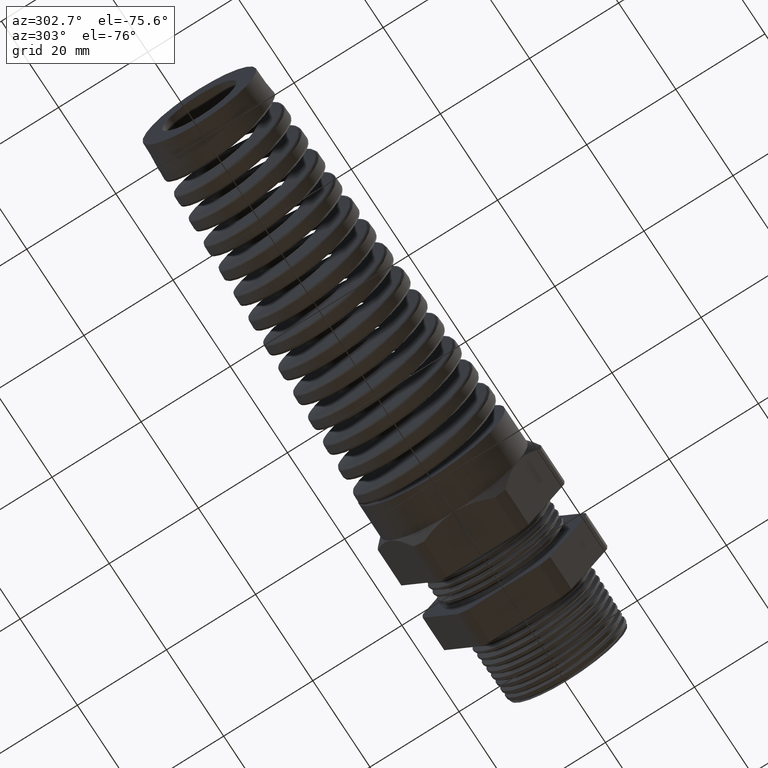
[diagram: clean part render]
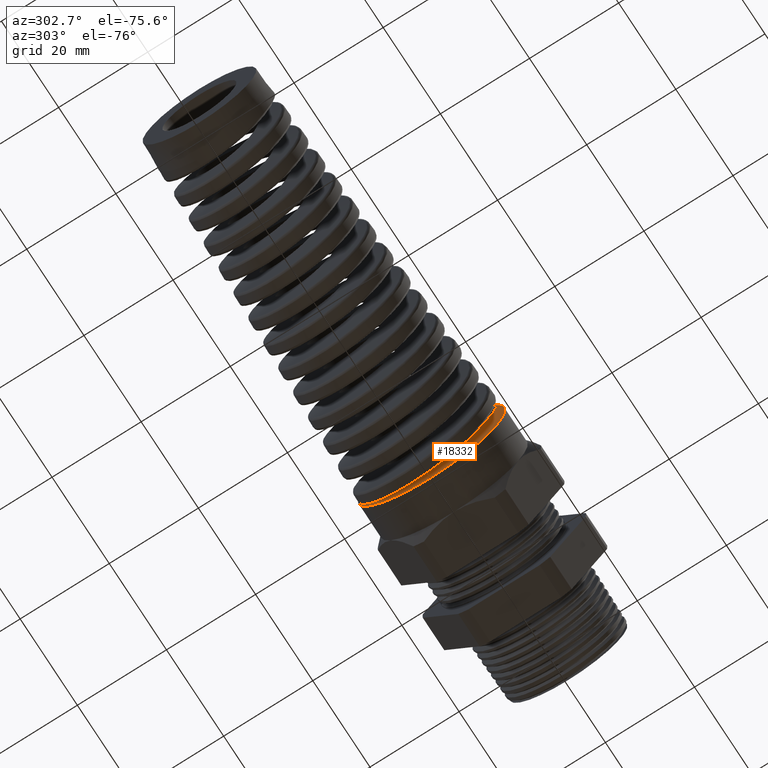
[diagram: same view with one face highlighted and labeled with its STEP entity id]
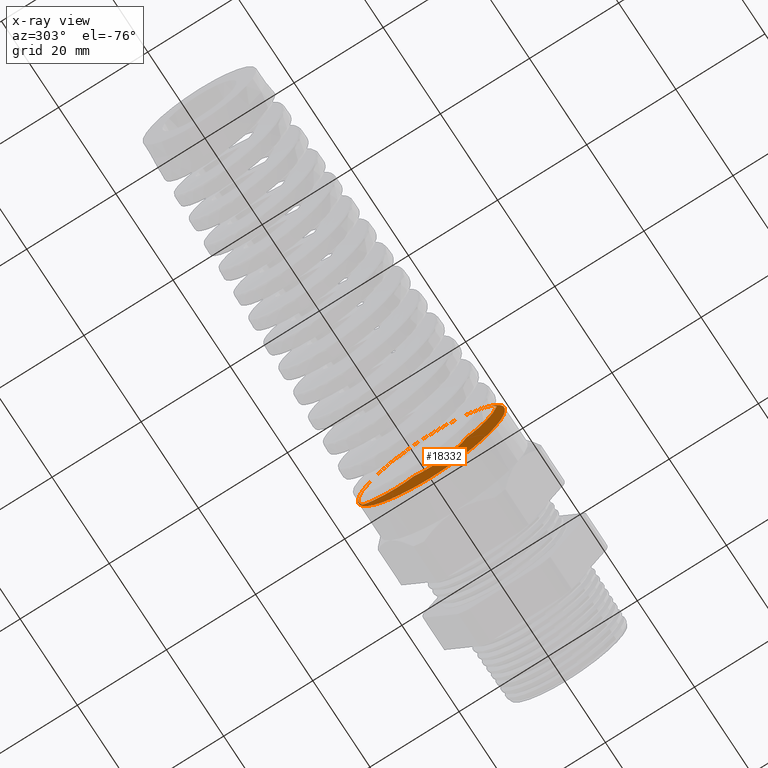
[diagram: x-ray of the same camera — body ghosted, the highlighted face saturated]
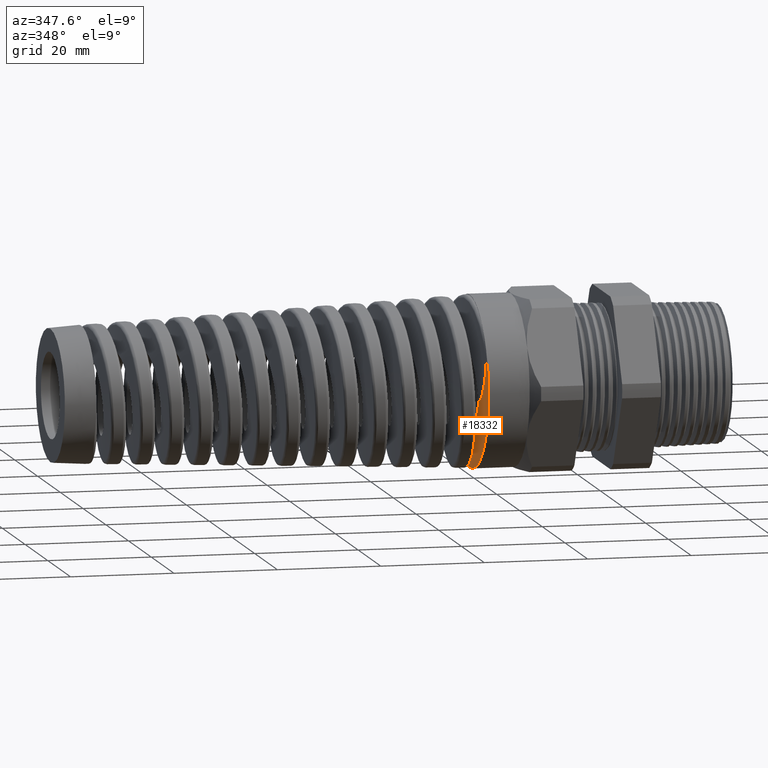
[diagram: same view with one face highlighted and labeled with its STEP entity id]
A machine part, auxiliary view. The second image highlights one B-rep face of the part: STEP entity #18332.
The next image is the same camera in x-ray: the body ghosted, the highlighted face saturated — about 1% of this face is hidden behind the body in this view.
A second angle (auxiliary view) of the same face is appended — the face is thin or edge-on in the first view.
In plain terms, the highlighted planar face has unit normal (-1, 0, 0).
Its self-contained STEP definition (entity closure, byte-faithful):
#4864 = VERTEX_POINT ( 'NONE', #11068 ) ;
#4868 = VERTEX_POINT ( 'NONE', #11067 ) ;
#5137 = EDGE_CURVE ( 'NONE', #5138, #5139, #11627, .T. ) ;
#5138 = VERTEX_POINT ( 'NONE', #11623 ) ;
#5139 = VERTEX_POINT ( 'NONE', #11622 ) ;
#5223 = CARTESIAN_POINT ( 'NONE',  ( -1.606986927084339500, 0.0000000000000000000, -0.3275967892592687200 ) ) ;
#5263 = DIRECTION ( 'NONE',  ( 0.0000000000000000000, 0.0000000000000000000, 1.000000000000000000 ) ) ;
#5264 = DIRECTION ( 'NONE',  ( -1.000000000000000000, 0.0000000000000000000, 0.0000000000000000000 ) ) ;
#5279 = AXIS2_PLACEMENT_3D ( 'NONE', #5282, #5264, #5263 ) ;
#5280 = CIRCLE ( 'NONE', #5279, 0.3275967892592687200 ) ;
#5282 = CARTESIAN_POINT ( 'NONE',  ( -1.606986927084339500, 0.0000000000000000000, 0.0000000000000000000 ) ) ;
#5283 = CARTESIAN_POINT ( 'NONE',  ( -1.606986927084339500, 0.1525758692573220800, -0.2898969824840443300 ) ) ;
#8694 = EDGE_CURVE ( 'NONE', #4864, #4868, #12082, .T. ) ;
#11067 = CARTESIAN_POINT ( 'NONE',  ( -1.606986927084339500, 7.919039874280547800E-017, 0.6466386781718688200 ) ) ;
#11068 = CARTESIAN_POINT ( 'NONE',  ( -1.606986927084339500, 0.6253945637225231100, 0.1643874075900485000 ) ) ;
#11622 = CARTESIAN_POINT ( 'NONE',  ( -1.606986927084339500, 0.0000000000000000000, -0.6500000000000000200 ) ) ;
#11623 = CARTESIAN_POINT ( 'NONE',  ( -1.606986927084339500, 7.960204194457796700E-017, 0.6500000000000000200 ) ) ;
#11624 = DIRECTION ( 'NONE',  ( 0.0000000000000000000, 0.0000000000000000000, 1.000000000000000000 ) ) ;
#11625 = DIRECTION ( 'NONE',  ( -1.000000000000000000, 0.0000000000000000000, 0.0000000000000000000 ) ) ;
#11626 = AXIS2_PLACEMENT_3D ( 'NONE', #11632, #11625, #11624 ) ;
#11627 = CIRCLE ( 'NONE', #11626, 0.6500000000000000200 ) ;
#11632 = CARTESIAN_POINT ( 'NONE',  ( -1.606986927084339500, 0.0000000000000000000, 0.0000000000000000000 ) ) ;
#12082 = CIRCLE ( 'NONE', #12109, 0.6466386781718688200 ) ;
#12106 = DIRECTION ( 'NONE',  ( 0.0000000000000000000, -1.776356839400250500E-015, 1.000000000000000000 ) ) ;
#12107 = DIRECTION ( 'NONE',  ( 1.000000000000000000, 0.0000000000000000000, 0.0000000000000000000 ) ) ;
#12108 = CARTESIAN_POINT ( 'NONE',  ( -1.606986927084339500, 0.0000000000000000000, 0.0000000000000000000 ) ) ;
#12109 = AXIS2_PLACEMENT_3D ( 'NONE', #12108, #12107, #12106 ) ;
#14622 = DIRECTION ( 'NONE',  ( 0.0000000000000000000, 0.0000000000000000000, 1.000000000000000000 ) ) ;
#14623 = DIRECTION ( 'NONE',  ( -1.000000000000000000, 0.0000000000000000000, 0.0000000000000000000 ) ) ;
#14923 = AXIS2_PLACEMENT_3D ( 'NONE', #14931, #14623, #14622 ) ;
#14924 = CIRCLE ( 'NONE', #14923, 0.6500000000000000200 ) ;
#14931 = CARTESIAN_POINT ( 'NONE',  ( -1.606986927084339500, 0.0000000000000000000, 0.0000000000000000000 ) ) ;
#15216 = CARTESIAN_POINT ( 'NONE',  ( -1.606986927084338700, 0.2466628839916254800, -0.3152417276093634200 ) ) ;
#15218 = CARTESIAN_POINT ( 'NONE',  ( -1.606986927084338400, 0.2271089660233394900, -0.3123547832230331200 ) ) ;
#15219 = CARTESIAN_POINT ( 'NONE',  ( -1.606986927084338700, 0.1890714355506049300, -0.3034836527518902600 ) ) ;
#15303 = EDGE_CURVE ( 'NONE', #5139, #5138, #14924, .T. ) ;
#15475 = CARTESIAN_POINT ( 'NONE',  ( -1.606986927084298200, -0.3953936961630021800, 0.5125090009739465800 ) ) ;
#15476 = CARTESIAN_POINT ( 'NONE',  ( -1.606986927084298700, -0.3713860056114847200, 0.5293524486991728600 ) ) ;
#15477 = FACE_BOUND ( 'NONE', #18331, .T. ) ;
#15478 = B_SPLINE_CURVE_WITH_KNOTS ( 'NONE', 3,
 ( #15476, #15475, #15536, #15535, #15533, #15532, #15531, #15530, #15529, #15528, #15527, #15526, #15525, #15524, #15523, #15522, #15521, #15520, #15519, #15518 ),
 .UNSPECIFIED., .F., .F.,
 ( 4, 2, 2, 2, 2, 2, 2, 2, 2, 4 ),
 ( 0.0000000000000000000, 0.002233429155656339700, 0.004466858311312679400, 0.005583572889140844500, 0.006700287466969011300, 0.007817002044797176400, 0.008375359333711258900, 0.008654537978168303600, 0.008794127300396826000, 0.008933716622625346600 ),
 .UNSPECIFIED. ) ;
#15479 = FACE_OUTER_BOUND ( 'NONE', #18323, .T. ) ;
#15506 = CARTESIAN_POINT ( 'NONE',  ( -1.606986927084340000, 0.1705499840504676500, -0.2975272333058839900 ) ) ;
#15507 = CARTESIAN_POINT ( 'NONE',  ( -1.606986927084339500, 0.1525758692573220800, -0.2898969824840443300 ) ) ;
#15515 = B_SPLINE_CURVE_WITH_KNOTS ( 'NONE', 3,
 ( #15507, #15506, #15219, #15218, #15216, #15581, #15580, #15579, #15578, #15577, #15576, #15575, #15574, #15573, #15572, #15571 ),
 .UNSPECIFIED., .F., .F.,
 ( 4, 2, 2, 2, 2, 2, 2, 4 ),
 ( 0.0005671956297391037900, 0.002049699988879208900, 0.003532204348019314900, 0.005014708707159421000, 0.006497213066299527400, 0.007979717425439639100, 0.009462221784579750000, 0.01242723050285997500 ),
 .UNSPECIFIED. ) ;
#15517 = CARTESIAN_POINT ( 'NONE',  ( -1.606986927084339100, 0.5918663483187143200, -0.2084196776351618400 ) ) ;
#15518 = CARTESIAN_POINT ( 'NONE',  ( -1.606986927084338900, -0.5758532563231713000, 0.2536149569738477300 ) ) ;
#15519 = CARTESIAN_POINT ( 'NONE',  ( -1.606986927084339800, -0.5761370601147899300, 0.2554878773819394000 ) ) ;
#15520 = CARTESIAN_POINT ( 'NONE',  ( -1.606986927084339500, -0.5758856447171730700, 0.2572977001086099200 ) ) ;
#15521 = CARTESIAN_POINT ( 'NONE',  ( -1.606986927084339800, -0.5753596344558067300, 0.2609146129047532100 ) ) ;
#15522 = CARTESIAN_POINT ( 'NONE',  ( -1.606986927084340000, -0.5749951750871217200, 0.2627111087316850200 ) ) ;
#15523 = CARTESIAN_POINT ( 'NONE',  ( -1.606986927084340000, -0.5737598408505646400, 0.2680838608209275000 ) ) ;
#15524 = CARTESIAN_POINT ( 'NONE',  ( -1.606986927084339800, -0.5727508345204169700, 0.2716096369968708500 ) ) ;
#15525 = CARTESIAN_POINT ( 'NONE',  ( -1.606986927084338900, -0.5694632478308563300, 0.2821029618865079600 ) ) ;
#15526 = CARTESIAN_POINT ( 'NONE',  ( -1.606986927084339500, -0.5669050091350813500, 0.2889929157921872800 ) ) ;
#15527 = CARTESIAN_POINT ( 'NONE',  ( -1.606986927084339100, -0.5586411726874732600, 0.3093728289040871800 ) ) ;
#15528 = CARTESIAN_POINT ( 'NONE',  ( -1.606986927084339800, -0.5523012210048146000, 0.3226184486838893900 ) ) ;
#15529 = CARTESIAN_POINT ( 'NONE',  ( -1.606986927084339500, -0.5384888178848713500, 0.3484737647971586400 ) ) ;
#15530 = CARTESIAN_POINT ( 'NONE',  ( -1.606986927084339100, -0.5310093914196856200, 0.3610567350344638400 ) ) ;
#15531 = CARTESIAN_POINT ( 'NONE',  ( -1.606986927084339500, -0.5150223248140312100, 0.3856043968433814400 ) ) ;
#15532 = CARTESIAN_POINT ( 'NONE',  ( -1.606986927084340000, -0.5065026882663206100, 0.3975731825138300000 ) ) ;
#15533 = CARTESIAN_POINT ( 'NONE',  ( -1.606986927084339800, -0.4797579582447571400, 0.4322030155566082300 ) ) ;
#15535 = CARTESIAN_POINT ( 'NONE',  ( -1.606986927084339500, -0.4602699228394089800, 0.4537401222057053100 ) ) ;
#15536 = CARTESIAN_POINT ( 'NONE',  ( -1.606986927084339500, -0.4181393237923942700, 0.4938667210132105000 ) ) ;
#15537 = DIRECTION ( 'NONE',  ( 0.0000000000000000000, 0.0000000000000000000, 1.000000000000000000 ) ) ;
#15538 = DIRECTION ( 'NONE',  ( -1.000000000000000000, 0.0000000000000000000, 0.0000000000000000000 ) ) ;
#15539 = CARTESIAN_POINT ( 'NONE',  ( -1.606986927084339500, 0.0000000000000000000, 0.0000000000000000000 ) ) ;
#15540 = AXIS2_PLACEMENT_3D ( 'NONE', #15539, #15538, #15537 ) ;
#15541 = PLANE ( 'NONE',  #15540 ) ;
#15542 = CARTESIAN_POINT ( 'NONE',  ( -1.606986927084338900, -0.5758532563231713000, 0.2536149569738477300 ) ) ;
#15545 = CARTESIAN_POINT ( 'NONE',  ( -1.606986927084338900, -0.3087797094566248600, -0.1094291887974319200 ) ) ;
#15546 = CARTESIAN_POINT ( 'NONE',  ( -1.606986927084339500, -0.3274563161736196400, -0.1026850538988236700 ) ) ;
#15547 = CARTESIAN_POINT ( 'NONE',  ( -1.606986927084339100, -0.3455898840764996000, -0.09416536117621730800 ) ) ;
#15548 = CARTESIAN_POINT ( 'NONE',  ( -1.606986927084338900, -0.3797693322112770700, -0.07449777756355149800 ) ) ;
#15549 = CARTESIAN_POINT ( 'NONE',  ( -1.606986927084339500, -0.3959231121181471800, -0.06332761039782940100 ) ) ;
#15550 = CARTESIAN_POINT ( 'NONE',  ( -1.606986927084340200, -0.4265253327524058400, -0.03855233031320185600 ) ) ;
#15551 = CARTESIAN_POINT ( 'NONE',  ( -1.606986927084338700, -0.4410730676983486400, -0.02481892116985363500 ) ) ;
#15552 = CARTESIAN_POINT ( 'NONE',  ( -1.606986927084338700, -0.4677573469326640800, 0.004198963043373525300 ) ) ;
#15553 = CARTESIAN_POINT ( 'NONE',  ( -1.606986927084340200, -0.4799615194685323800, 0.01950825141980029900 ) ) ;
#15554 = CARTESIAN_POINT ( 'NONE',  ( -1.606986927084340200, -0.5023182466968374400, 0.05156975628114834200 ) ) ;
#15555 = CARTESIAN_POINT ( 'NONE',  ( -1.606986927084339800, -0.5124691067698992100, 0.06832316461274888500 ) ) ;
#15556 = CARTESIAN_POINT ( 'NONE',  ( -1.606986927084339800, -0.5308069325077134900, 0.1032112124115894100 ) ) ;
#15557 = CARTESIAN_POINT ( 'NONE',  ( -1.606986927084340000, -0.5389899436473925000, 0.1213850689791714600 ) ) ;
#15558 = CARTESIAN_POINT ( 'NONE',  ( -1.606986927084340200, -0.5601152996880796000, 0.1765053614007575400 ) ) ;
#15559 = CARTESIAN_POINT ( 'NONE',  ( -1.606986927084338900, -0.5699254712152763700, 0.2144954313325386800 ) ) ;
#15564 = CARTESIAN_POINT ( 'NONE',  ( -1.606986927084338900, -0.5758532563231713000, 0.2536149569738477300 ) ) ;
#15567 = B_SPLINE_CURVE_WITH_KNOTS ( 'NONE', 3,
 ( #15564, #15559, #15558, #15557, #15556, #15555, #15554, #15553, #15552, #15551, #15550, #15549, #15548, #15547, #15546, #15545 ),
 .UNSPECIFIED., .F., .F.,
 ( 4, 2, 2, 2, 2, 2, 2, 4 ),
 ( 0.0002090139264581063000, 0.003197436765180117300, 0.004691648184541122500, 0.006185859603902126400, 0.007680071023263131100, 0.009174282442624134100, 0.01066849386198514100, 0.01216270528134614500 ),
 .UNSPECIFIED. ) ;
#15569 = CARTESIAN_POINT ( 'NONE',  ( -1.606986927084338900, -0.3087797094566248600, -0.1094291887974319200 ) ) ;
#15570 = CARTESIAN_POINT ( 'NONE',  ( -1.606986927084298700, -0.3713860056114847200, 0.5293524486991728600 ) ) ;
#15571 = CARTESIAN_POINT ( 'NONE',  ( -1.606986927084339100, 0.5918663483187143200, -0.2084196776351618400 ) ) ;
#15572 = CARTESIAN_POINT ( 'NONE',  ( -1.606986927084340000, 0.5610218789773465700, -0.2325896972334852200 ) ) ;
#15573 = CARTESIAN_POINT ( 'NONE',  ( -1.606986927084338700, 0.5281061432741448500, -0.2533090027158715900 ) ) ;
#15574 = CARTESIAN_POINT ( 'NONE',  ( -1.606986927084339100, 0.4753480172677558800, -0.2787493720961435900 ) ) ;
#15575 = CARTESIAN_POINT ( 'NONE',  ( -1.606986927084339100, 0.4571479474012786200, -0.2862834662086485300 ) ) ;
#15576 = CARTESIAN_POINT ( 'NONE',  ( -1.606986927084338900, 0.4203139606742756200, -0.2989955006851495700 ) ) ;
#15577 = CARTESIAN_POINT ( 'NONE',  ( -1.606986927084340000, 0.4015921505005232200, -0.3042233576872719900 ) ) ;
#15578 = CARTESIAN_POINT ( 'NONE',  ( -1.606986927084339500, 0.3634960429880342800, -0.3122641455805595900 ) ) ;
#15579 = CARTESIAN_POINT ( 'NONE',  ( -1.606986927084339800, 0.3439906980954839400, -0.3150838541492285700 ) ) ;
#15580 = CARTESIAN_POINT ( 'NONE',  ( -1.606986927084339100, 0.3049977093083187100, -0.3179491741577640300 ) ) ;
#15581 = CARTESIAN_POINT ( 'NONE',  ( -1.606986927084339500, 0.2855313251144825900, -0.3180179539975204200 ) ) ;
#15582 = CARTESIAN_POINT ( 'NONE',  ( -1.606986927084339500, 0.6253945637225231100, 0.1643874075900485000 ) ) ;
#15583 = CARTESIAN_POINT ( 'NONE',  ( -1.606986927084338900, 0.6335719641873015500, 0.1332773495203240000 ) ) ;
#15584 = CARTESIAN_POINT ( 'NONE',  ( -1.606986927084339800, 0.6391233371015067100, 0.1019079128296360400 ) ) ;
#15585 = CARTESIAN_POINT ( 'NONE',  ( -1.606986927084339100, 0.6451297950857216600, 0.03866566768695770700 ) ) ;
#15586 = CARTESIAN_POINT ( 'NONE',  ( -1.606986927084339100, 0.6455851965015426700, 0.006713684613441112300 ) ) ;
#15587 = CARTESIAN_POINT ( 'NONE',  ( -1.606986927084338900, 0.6410231947795472800, -0.05740057626494572000 ) ) ;
#15588 = CARTESIAN_POINT ( 'NONE',  ( -1.606986927084339100, 0.6360977525976583300, -0.08891422449836061700 ) ) ;
#15589 = CARTESIAN_POINT ( 'NONE',  ( -1.606986927084339100, 0.6242718618486915400, -0.1352726607604366500 ) ) ;
#15590 = CARTESIAN_POINT ( 'NONE',  ( -1.606986927084339500, 0.6196002236042690300, -0.1505755110424931200 ) ) ;
#15591 = CARTESIAN_POINT ( 'NONE',  ( -1.606986927084339500, 0.6110704923742577000, -0.1732169306837037500 ) ) ;
#15592 = CARTESIAN_POINT ( 'NONE',  ( -1.606986927084340000, 0.6079962294288490100, -0.1806676945118639900 ) ) ;
#15593 = CARTESIAN_POINT ( 'NONE',  ( -1.606986927084339800, 0.6028137084020595000, -0.1915737912394367100 ) ) ;
#15594 = CARTESIAN_POINT ( 'NONE',  ( -1.606986927084340000, 0.6009945093865900500, -0.1951669629123172200 ) ) ;
#15595 = CARTESIAN_POINT ( 'NONE',  ( -1.606986927084339500, 0.5979783690388856800, -0.2004244943583010900 ) ) ;
#15596 = CARTESIAN_POINT ( 'NONE',  ( -1.606986927084339500, 0.5969254491276490000, -0.2021560503943230800 ) ) ;
#15597 = CARTESIAN_POINT ( 'NONE',  ( -1.606986927084339100, 0.5946454535188845400, -0.2054766561248002100 ) ) ;
#15598 = CARTESIAN_POINT ( 'NONE',  ( -1.606986927084339100, 0.5935043509322254200, -0.2071361232049495600 ) ) ;
#15603 = CARTESIAN_POINT ( 'NONE',  ( -1.606986927084339100, 0.5918663483187143200, -0.2084196776351618400 ) ) ;
#15605 = B_SPLINE_CURVE_WITH_KNOTS ( 'NONE', 3,
 ( #15603, #15598, #15597, #15596, #15595, #15594, #15593, #15592, #15591, #15590, #15589, #15588, #15587, #15586, #15585, #15584, #15583, #15582 ),
 .UNSPECIFIED., .F., .F.,
 ( 4, 2, 2, 2, 2, 2, 2, 2, 4 ),
 ( 0.0000000000000000000, 0.0001533047713067788800, 0.0003066095426135577700, 0.0006132190852271155400, 0.001226438170454231100, 0.002452876340908457800, 0.004905752681816911300, 0.007358629022725364300, 0.009811505363633817400 ),
 .UNSPECIFIED. ) ;
#15606 = DIRECTION ( 'NONE',  ( 0.0000000000000000000, 0.0000000000000000000, 1.000000000000000000 ) ) ;
#15607 = DIRECTION ( 'NONE',  ( 1.000000000000000000, 0.0000000000000000000, 0.0000000000000000000 ) ) ;
#15608 = CARTESIAN_POINT ( 'NONE',  ( -1.606986927084339500, 0.0000000000000000000, 0.0000000000000000000 ) ) ;
#15609 = AXIS2_PLACEMENT_3D ( 'NONE', #15608, #15607, #15606 ) ;
#15610 = CIRCLE ( 'NONE', #15609, 0.6466386781718688200 ) ;
#15696 = DIRECTION ( 'NONE',  ( 0.0000000000000000000, 0.0000000000000000000, 1.000000000000000000 ) ) ;
#15697 = DIRECTION ( 'NONE',  ( -1.000000000000000000, 0.0000000000000000000, 0.0000000000000000000 ) ) ;
#15698 = AXIS2_PLACEMENT_3D ( 'NONE', #15704, #15697, #15696 ) ;
#15699 = CIRCLE ( 'NONE', #15698, 0.3275967892592687200 ) ;
#15704 = CARTESIAN_POINT ( 'NONE',  ( -1.606986927084339500, 0.0000000000000000000, 0.0000000000000000000 ) ) ;
#18323 = EDGE_LOOP ( 'NONE', ( #18539, #18534 ) ) ;
#18324 = EDGE_CURVE ( 'NONE', #18338, #18333, #15478, .T. ) ;
#18325 = ORIENTED_EDGE ( 'NONE', *, *, #18541, .F. ) ;
#18330 = ORIENTED_EDGE ( 'NONE', *, *, #18324, .T. ) ;
#18331 = EDGE_LOOP ( 'NONE', ( #18345, #18352, #18397, #18390, #18359, #18330, #18344, #18325 ) ) ;
#18332 = ADVANCED_FACE ( 'NONE', ( #15477, #15479 ), #15541, .T. ) ;
#18333 = VERTEX_POINT ( 'NONE', #15542 ) ;
#18334 = VERTEX_POINT ( 'NONE', #15517 ) ;
#18335 = EDGE_CURVE ( 'NONE', #18873, #18334, #15515, .T. ) ;
#18338 = VERTEX_POINT ( 'NONE', #15570 ) ;
#18342 = VERTEX_POINT ( 'NONE', #15569 ) ;
#18343 = EDGE_CURVE ( 'NONE', #18333, #18342, #15567, .T. ) ;
#18344 = ORIENTED_EDGE ( 'NONE', *, *, #18343, .T. ) ;
#18345 = ORIENTED_EDGE ( 'NONE', *, *, #18875, .F. ) ;
#18352 = ORIENTED_EDGE ( 'NONE', *, *, #18335, .T. ) ;
#18359 = ORIENTED_EDGE ( 'NONE', *, *, #18366, .T. ) ;
#18366 = EDGE_CURVE ( 'NONE', #4868, #18338, #15610, .T. ) ;
#18390 = ORIENTED_EDGE ( 'NONE', *, *, #8694, .T. ) ;
#18396 = EDGE_CURVE ( 'NONE', #18334, #4864, #15605, .T. ) ;
#18397 = ORIENTED_EDGE ( 'NONE', *, *, #18396, .T. ) ;
#18534 = ORIENTED_EDGE ( 'NONE', *, *, #5137, .T. ) ;
#18539 = ORIENTED_EDGE ( 'NONE', *, *, #15303, .T. ) ;
#18541 = EDGE_CURVE ( 'NONE', #18865, #18342, #15699, .T. ) ;
#18865 = VERTEX_POINT ( 'NONE', #5223 ) ;
#18873 = VERTEX_POINT ( 'NONE', #5283 ) ;
#18875 = EDGE_CURVE ( 'NONE', #18873, #18865, #5280, .T. ) ;